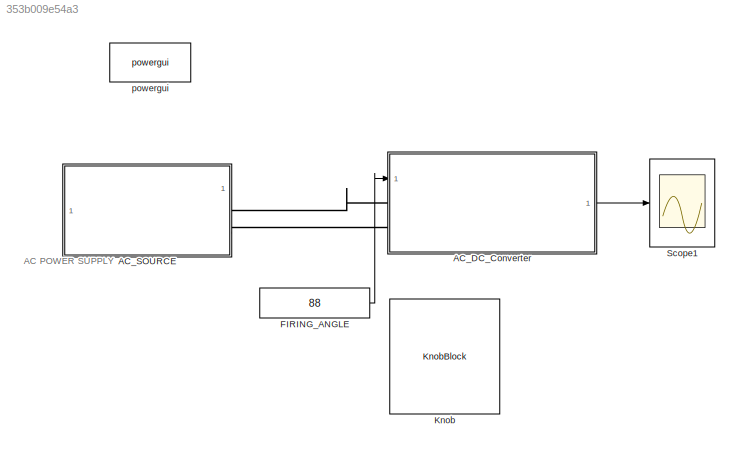
MODEL slx_353b009e54a3
KIND model
CONFIG AbsTol = auto
CONFIG EnableMultiTasking = off
CONFIG FixedStep = auto
CONFIG MaxStep = auto
CONFIG MinStep = auto
CONFIG RelTol = 1e-3
CONFIG SampleTimeConstraint = Unconstrained
CONFIG SolverName = VariableStepAuto
CONFIG StartTime = 0.0
CONFIG StopTime = .4
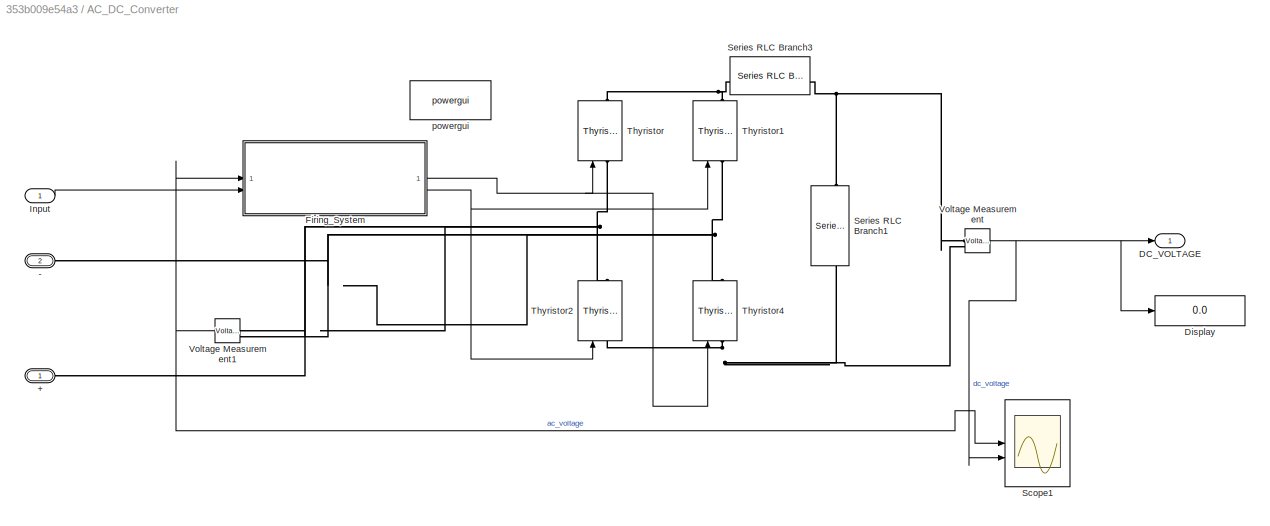
BLOCK [SubSystem] AC_DC_Converter
BLOCK [PMIOPort] AC_DC_Converter/+
  NameLocation = top
  Side = Left
BLOCK [PMIOPort] AC_DC_Converter/-
  NameLocation = top
  Port = 2
  Side = Left
BLOCK [Outport] AC_DC_Converter/DC_VOLTAGE
BLOCK [Display] AC_DC_Converter/Display
  Decimation = 1
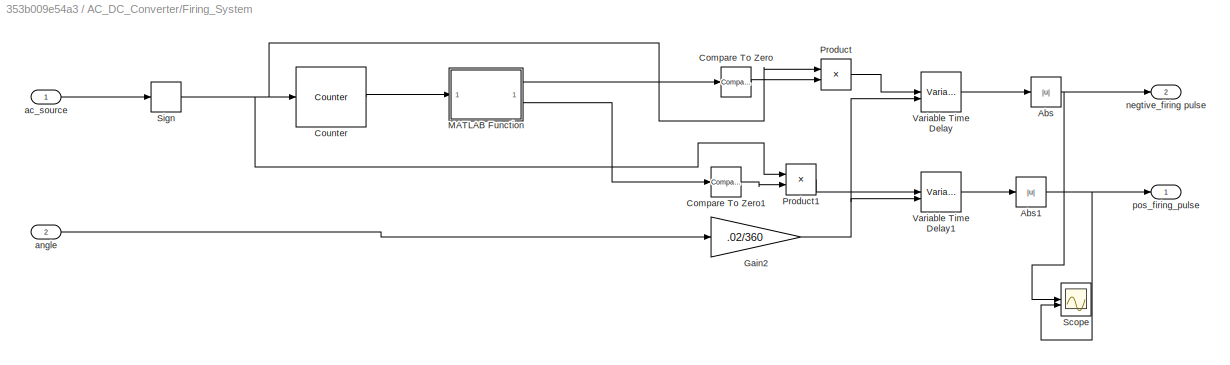
BLOCK [SubSystem] AC_DC_Converter/Firing_System
BLOCK [Abs] AC_DC_Converter/Firing_System/Abs
  SaturateOnIntegerOverflow = off
BLOCK [Abs] AC_DC_Converter/Firing_System/Abs1
  SaturateOnIntegerOverflow = off
BLOCK [Reference] AC_DC_Converter/Firing_System/Compare To Zero  REF=simulink/Logic and Bit
Operations/Compare
To Zero
  SourceBlock = simulink/Logic and Bit\nOperations/Compare\nTo Zero
  SourceType = Compare To Zero
BLOCK [Reference] AC_DC_Converter/Firing_System/Compare To Zero1  REF=simulink/Logic and Bit
Operations/Compare
To Zero
  SourceBlock = simulink/Logic and Bit\nOperations/Compare\nTo Zero
  SourceType = Compare To Zero
BLOCK [Reference] AC_DC_Converter/Firing_System/Counter  REF=dspswit3/Counter
  SourceBlock = dspswit3/Counter
  SourceType = Counter
BLOCK [Gain] AC_DC_Converter/Firing_System/Gain2
  Gain = .02/360
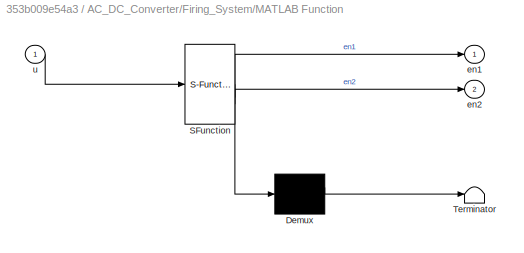
BLOCK [SubSystem] AC_DC_Converter/Firing_System/MATLAB Function
  ErrorFcn = Stateflow.Translate.translate
  PermitHierarchicalResolution = ExplicitOnly
  SFBlockType = MATLAB Function
  TreatAsAtomicUnit = on
BLOCK [Demux] AC_DC_Converter/Firing_System/MATLAB Function/ Demux 
  Outputs = 1
BLOCK [S-Function] AC_DC_Converter/Firing_System/MATLAB Function/ SFunction 
  EnableBusSupport = off
  FunctionName = sf_sfun
  PortCounts = [1 3]
  SFcnIsStateOwnerBlock = off
  SFunctionDeploymentMode = off
  Tag = Stateflow S-Function 2
BLOCK [Terminator] AC_DC_Converter/Firing_System/MATLAB Function/ Terminator 
BLOCK [Outport] AC_DC_Converter/Firing_System/MATLAB Function/en1
BLOCK [Outport] AC_DC_Converter/Firing_System/MATLAB Function/en2
  Port = 2
BLOCK [Inport] AC_DC_Converter/Firing_System/MATLAB Function/u
BLOCK [Product] AC_DC_Converter/Firing_System/Product
BLOCK [Product] AC_DC_Converter/Firing_System/Product1
BLOCK [Scope] AC_DC_Converter/Firing_System/Scope
  Floating = off
  NumInputPorts = 2
  ScopeSpecificationString = Simulink.scopes.TimeScopeBlockCfg('CurrentConfiguration', extmgr.ConfigurationSet(extmgr.Configuration('Core','General UI',true),extmgr.Configuration('Core','Source UI',true),extmgr.Configuration('Sources','WiredSimulink',true),extmgr.Configuration('Visuals','Time Domain',true,'SerializedDisplays',{struct('MinYLimReal','-0.125','MaxYLimReal','1.125','YLabelReal','','MinYLimMag','0.00000','MaxYLimM...<+2078ch>
BLOCK [Signum] AC_DC_Converter/Firing_System/Sign
BLOCK [VariableTransportDelay] AC_DC_Converter/Firing_System/Variable Time Delay
  MaximumDelay = 10
BLOCK [VariableTransportDelay] AC_DC_Converter/Firing_System/Variable Time Delay1
  MaximumDelay = 10
BLOCK [Inport] AC_DC_Converter/Firing_System/ac_source
BLOCK [Inport] AC_DC_Converter/Firing_System/angle
  Port = 2
BLOCK [Outport] AC_DC_Converter/Firing_System/negtive_firing pulse
  Port = 2
BLOCK [Outport] AC_DC_Converter/Firing_System/pos_firing_pulse
BLOCK [Inport] AC_DC_Converter/Input
BLOCK [Scope] AC_DC_Converter/Scope1
  Floating = off
  NumInputPorts = 2
  ScopeSpecificationString = Simulink.scopes.TimeScopeBlockCfg('CurrentConfiguration', extmgr.ConfigurationSet(extmgr.Configuration('Core','General UI',true,'FigureColor',[0.635294117647059 0.0784313725490196 0.184313725490196]),extmgr.Configuration('Core','Source UI',true),extmgr.Configuration('Sources','WiredSimulink',true,'DataLoggingVariableName','ScopeData1'),extmgr.Configuration('Visuals','Time Domain',true,'SerializedD...<+2650ch>
BLOCK [Reference] AC_DC_Converter/Series RLC Branch1  REF=spsSeriesRLCBranchLib/Series RLC Branch
  LibrarySourceBlock = sps_lib/Passives/Series RLC Branch
  NameLocation = left
  SourceBlock = spsSeriesRLCBranchLib/Series RLC Branch
  SourceType = Series RLC Branch
BLOCK [Reference] AC_DC_Converter/Series RLC Branch3  REF=spsSeriesRLCBranchLib/Series RLC Branch
  LibrarySourceBlock = sps_lib/Passives/Series RLC Branch
  NameLocation = top
  SourceBlock = spsSeriesRLCBranchLib/Series RLC Branch
  SourceType = Series RLC Branch
BLOCK [Reference] AC_DC_Converter/Thyristor  REF=spsThyristorLib/Thyristor
  LibrarySourceBlock = sps_lib/Power Electronics/Thyristor
  NameLocation = right
  SourceBlock = spsThyristorLib/Thyristor
  SourceType = Thyristor
BLOCK [Reference] AC_DC_Converter/Thyristor1  REF=spsThyristorLib/Thyristor
  LibrarySourceBlock = sps_lib/Power Electronics/Thyristor
  NameLocation = right
  SourceBlock = spsThyristorLib/Thyristor
  SourceType = Thyristor
BLOCK [Reference] AC_DC_Converter/Thyristor2  REF=spsThyristorLib/Thyristor
  LibrarySourceBlock = sps_lib/Power Electronics/Thyristor
  NameLocation = right
  SourceBlock = spsThyristorLib/Thyristor
  SourceType = Thyristor
BLOCK [Reference] AC_DC_Converter/Thyristor4  REF=spsThyristorLib/Thyristor
  LibrarySourceBlock = sps_lib/Power Electronics/Thyristor
  NameLocation = right
  SourceBlock = spsThyristorLib/Thyristor
  SourceType = Thyristor
BLOCK [Reference] AC_DC_Converter/Voltage Measurement  REF=spsVoltageMeasurementLib/Voltage Measurement
  LibrarySourceBlock = sps_lib/Sensors and Measurements/Voltage Measurement
  SourceBlock = spsVoltageMeasurementLib/Voltage Measurement
  SourceType = Voltage Measurement
  UserDataPersistent = on
BLOCK [Reference] AC_DC_Converter/Voltage Measurement1  REF=spsVoltageMeasurementLib/Voltage Measurement
  LibrarySourceBlock = sps_lib/Sensors and Measurements/Voltage Measurement
  SourceBlock = spsVoltageMeasurementLib/Voltage Measurement
  SourceType = Voltage Measurement
  UserDataPersistent = on
BLOCK [Reference] AC_DC_Converter/powergui  REF=spspowerguiLib/powergui
  LibrarySourceBlock = sps_lib/powergui
  Priority = 1
  SourceBlock = spspowerguiLib/powergui
  SourceType = PSB option menu block
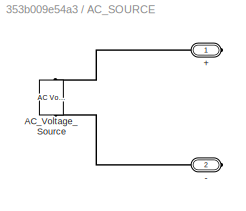
BLOCK [SubSystem] AC_SOURCE
  NameLocation = left
BLOCK [PMIOPort] AC_SOURCE/+
  Side = Right
BLOCK [PMIOPort] AC_SOURCE/-
  Port = 2
  Side = Right
BLOCK [Reference] AC_SOURCE/AC_Voltage_Source  REF=spsACVoltageSourceLib/AC Voltage Source
  LibrarySourceBlock = sps_lib/Sources/AC Voltage Source
  NameLocation = right
  SourceBlock = spsACVoltageSourceLib/AC Voltage Source
  SourceType = AC Voltage Source
BLOCK [Constant] FIRING_ANGLE
  Value = 88
BLOCK [KnobBlock] Knob
  ScaleMax = 180
BLOCK [Scope] Scope1
  Floating = off
  NumInputPorts = 1
  ScopeSpecificationString = Simulink.scopes.TimeScopeBlockCfg('CurrentConfiguration', extmgr.ConfigurationSet(extmgr.Configuration('Core','General UI',true,'FigureColor',[0.635294117647059 0.0784313725490196 0.184313725490196]),extmgr.Configuration('Core','Source UI',true),extmgr.Configuration('Sources','WiredSimulink',true,'DataLoggingVariableName','ScopeData2'),extmgr.Configuration('Visuals','Time Domain',true,'SerializedD...<+1999ch>
BLOCK [Reference] powergui  REF=spspowerguiLib/powergui
  LibrarySourceBlock = sps_lib/powergui
  Priority = 1
  SourceBlock = spspowerguiLib/powergui
  SourceType = PSB option menu block
ANNOTATION (root): AC POWER SUPPLY
NET AC_DC_Converter/Firing_System/Abs1:1 -> AC_DC_Converter/Firing_System/Scope:2, AC_DC_Converter/Firing_System/pos_firing_pulse:1
NET AC_DC_Converter/Firing_System/Abs:1 -> AC_DC_Converter/Firing_System/Scope:1, AC_DC_Converter/Firing_System/negtive_firing pulse:1
LINE AC_DC_Converter/Firing_System/Compare To Zero1:1 -> AC_DC_Converter/Firing_System/Product1:2
LINE AC_DC_Converter/Firing_System/Compare To Zero:1 -> AC_DC_Converter/Firing_System/Product:2
LINE AC_DC_Converter/Firing_System/Counter:1 -> AC_DC_Converter/Firing_System/MATLAB Function:1
NET AC_DC_Converter/Firing_System/Gain2:1 -> AC_DC_Converter/Firing_System/Variable Time Delay1:2, AC_DC_Converter/Firing_System/Variable Time Delay:2
LINE AC_DC_Converter/Firing_System/MATLAB Function:1 -> AC_DC_Converter/Firing_System/Compare To Zero:1
LINE AC_DC_Converter/Firing_System/MATLAB Function:2 -> AC_DC_Converter/Firing_System/Compare To Zero1:1
LINE AC_DC_Converter/Firing_System/Product1:1 -> AC_DC_Converter/Firing_System/Variable Time Delay1:1
LINE AC_DC_Converter/Firing_System/Product:1 -> AC_DC_Converter/Firing_System/Variable Time Delay:1
NET AC_DC_Converter/Firing_System/Sign:1 -> AC_DC_Converter/Firing_System/Counter:1, AC_DC_Converter/Firing_System/Product1:1, AC_DC_Converter/Firing_System/Product:1
LINE AC_DC_Converter/Firing_System/Variable Time Delay1:1 -> AC_DC_Converter/Firing_System/Abs1:1
LINE AC_DC_Converter/Firing_System/Variable Time Delay:1 -> AC_DC_Converter/Firing_System/Abs:1
LINE AC_DC_Converter/Firing_System/ac_source:1 -> AC_DC_Converter/Firing_System/Sign:1
LINE AC_DC_Converter/Firing_System/angle:1 -> AC_DC_Converter/Firing_System/Gain2:1
NET AC_DC_Converter/Firing_System:1 -> AC_DC_Converter/Thyristor4:1, AC_DC_Converter/Thyristor:1
NET AC_DC_Converter/Firing_System:2 -> AC_DC_Converter/Thyristor1:1, AC_DC_Converter/Thyristor2:1
LINE AC_DC_Converter/Input:1 -> AC_DC_Converter/Firing_System:2
NET AC_DC_Converter/Voltage Measurement1:1 -> AC_DC_Converter/Firing_System:1, AC_DC_Converter/Scope1:1
NET AC_DC_Converter/Voltage Measurement:1 -> AC_DC_Converter/DC_VOLTAGE:1, AC_DC_Converter/Display:1, AC_DC_Converter/Scope1:2
LINE AC_DC_Converter:1 -> Scope1:1
LINE FIRING_ANGLE:1 -> AC_DC_Converter:1
PNET net1: AC_DC_Converter/+:RConn1 -- AC_DC_Converter/Thyristor2:RConn1 -- AC_DC_Converter/Thyristor:LConn1 -- AC_DC_Converter/Voltage Measurement1:LConn1
PNET net2: AC_DC_Converter/-:RConn1 -- AC_DC_Converter/Thyristor1:LConn1 -- AC_DC_Converter/Thyristor4:RConn1 -- AC_DC_Converter/Voltage Measurement1:LConn2
PNET net3: AC_DC_Converter/Series RLC Branch1:LConn1 -- AC_DC_Converter/Series RLC Branch3:LConn1 -- AC_DC_Converter/Voltage Measurement:LConn1
PNET net4: AC_DC_Converter/Series RLC Branch1:RConn1 -- AC_DC_Converter/Thyristor2:LConn1 -- AC_DC_Converter/Thyristor4:LConn1 -- AC_DC_Converter/Voltage Measurement:LConn2
PNET net5: AC_DC_Converter/Series RLC Branch3:RConn1 -- AC_DC_Converter/Thyristor1:RConn1 -- AC_DC_Converter/Thyristor:RConn1
PLINE AC_DC_Converter:LConn1 -- AC_SOURCE:RConn1
PLINE AC_DC_Converter:LConn2 -- AC_SOURCE:RConn2
PLINE AC_SOURCE/+:RConn1 -- AC_SOURCE/AC_Voltage_Source:RConn1
PLINE AC_SOURCE/-:RConn1 -- AC_SOURCE/AC_Voltage_Source:LConn1
note: NET lines group one-source signal fan-out (src -> all destinations, sorted); 1:1 wires keep LINE; PNET lines group multi-terminal physical nets as a canonical sorted terminal list (undirected conserving connections); 2-terminal nets keep the pairwise PLINE form
CHART AC_DC_Converter/Firing_System/MATLAB Function states=1 transitions=1
  STATE_LABEL 'eML_blk_kernel()'
  STATE_LABEL 'SCRIPT:\nfunction [en1, en2] = fcn(u)\nif rem(u, 2)==0\n    en2 = 1;\n    en1 = 0;\nelse\n    en1 = 1;\n    en2 = 0;\nend\ny = u;\n'
CHART  states=0 transitions=0
